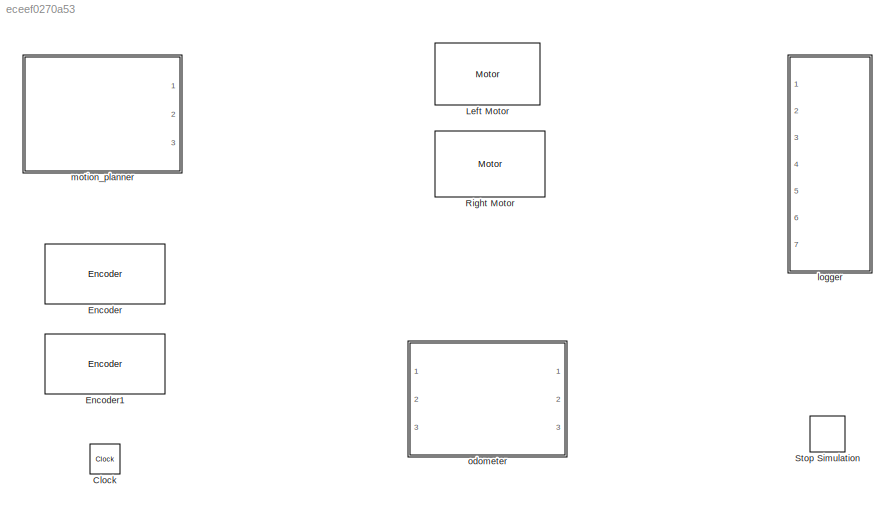
MODEL slx_eceef0270a53
KIND model
CONFIG AbsTol = auto
CONFIG FixedStep = 0.032
CONFIG MaxStep = auto
CONFIG MinStep = auto
CONFIG RelTol = 1e-3
CONFIG SampleTimeConstraint = Unconstrained
CONFIG Solver = FixedStepAuto
CONFIG SolverMode = Auto
CONFIG SolverName = FixedStepAuto
CONFIG StartTime = 0.0
CONFIG StopTime = 60
BLOCK [Clock] Clock
  Decimation = 1
BLOCK [Reference] Encoder  REF=legoev3lib/Encoder
  Ports = [0, 1]
  SourceBlock = legoev3lib/Encoder
  SourceType = LEGO MINDSTORMS EV3 Encoder
BLOCK [Reference] Encoder1  REF=legoev3lib/Encoder
  Ports = [0, 1]
  SourceBlock = legoev3lib/Encoder
  SourceType = LEGO MINDSTORMS EV3 Encoder
BLOCK [Reference] Left Motor  REF=legoev3lib/Motor
  Ports = [1]
  SourceBlock = legoev3lib/Motor
  SourceType = LEGO MINDSTORMS EV3 Motor
BLOCK [Reference] Right Motor  REF=legoev3lib/Motor
  Ports = [1]
  SourceBlock = legoev3lib/Motor
  SourceType = LEGO MINDSTORMS EV3 Motor
BLOCK [Stop] Stop Simulation
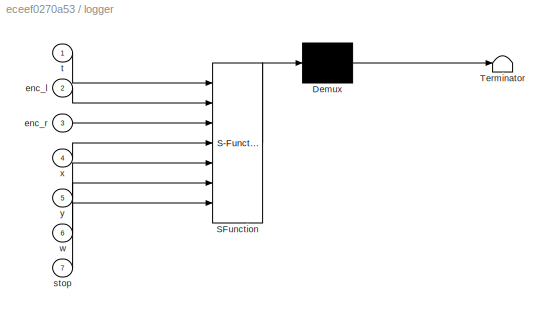
BLOCK [SubSystem] logger
  ErrorFcn = Stateflow.Translate.translate
  PermitHierarchicalResolution = ExplicitOnly
  Ports = [7]
  RequestExecContextInheritance = off
  SFBlockType = MATLAB Function
  TreatAsAtomicUnit = on
  Variant = off
BLOCK [Demux] logger/ Demux 
  Outputs = 1
  Ports = [1, 1]
BLOCK [S-Function] logger/ SFunction 
  EnableBusSupport = on
  FunctionName = sf_sfun
  PortCounts = [7 1]
  Ports = [7, 1]
  SFunctionDeploymentMode = off
  Tag = Stateflow S-Function practica5_ev3 3
BLOCK [Terminator] logger/ Terminator 
BLOCK [Inport] logger/enc_l
  IconDisplay = Port number
  Port = 2
BLOCK [Inport] logger/enc_r
  IconDisplay = Port number
  Port = 3
BLOCK [Inport] logger/stop
  IconDisplay = Port number
  Port = 7
BLOCK [Inport] logger/t
  IconDisplay = Port number
BLOCK [Inport] logger/w
  IconDisplay = Port number
  Port = 6
BLOCK [Inport] logger/x
  IconDisplay = Port number
  Port = 4
BLOCK [Inport] logger/y
  IconDisplay = Port number
  Port = 5
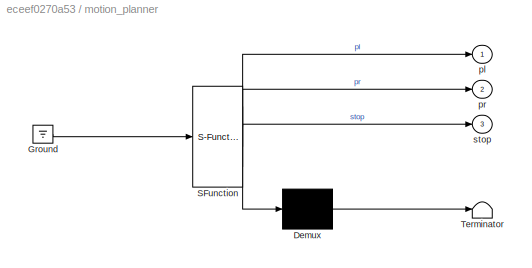
BLOCK [SubSystem] motion_planner
  ErrorFcn = Stateflow.Translate.translate
  PermitHierarchicalResolution = ExplicitOnly
  Ports = [0, 3]
  RequestExecContextInheritance = off
  SFBlockType = MATLAB Function
  TreatAsAtomicUnit = on
  Variant = off
BLOCK [Demux] motion_planner/ Demux 
  Outputs = 1
  Ports = [1, 1]
BLOCK [Ground] motion_planner/ Ground 
BLOCK [S-Function] motion_planner/ SFunction 
  EnableBusSupport = on
  FunctionName = sf_sfun
  PortCounts = [1 4]
  Ports = [1, 4]
  SFunctionDeploymentMode = off
  Tag = Stateflow S-Function practica5_ev3 1
BLOCK [Terminator] motion_planner/ Terminator 
BLOCK [Outport] motion_planner/pl
  IconDisplay = Port number
BLOCK [Outport] motion_planner/pr
  IconDisplay = Port number
  Port = 2
BLOCK [Outport] motion_planner/stop
  IconDisplay = Port number
  Port = 3
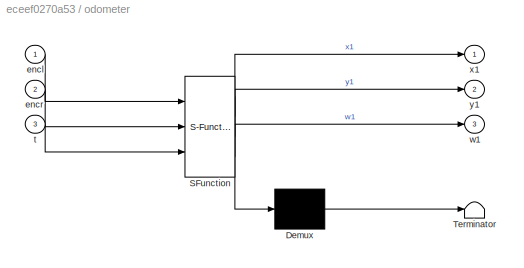
BLOCK [SubSystem] odometer
  ErrorFcn = Stateflow.Translate.translate
  PermitHierarchicalResolution = ExplicitOnly
  Ports = [3, 3]
  RequestExecContextInheritance = off
  SFBlockType = MATLAB Function
  TreatAsAtomicUnit = on
  Variant = off
BLOCK [Demux] odometer/ Demux 
  Outputs = 1
  Ports = [1, 1]
BLOCK [S-Function] odometer/ SFunction 
  EnableBusSupport = on
  FunctionName = sf_sfun
  PortCounts = [3 4]
  Ports = [3, 4]
  SFunctionDeploymentMode = off
  Tag = Stateflow S-Function practica5_ev3 2
BLOCK [Terminator] odometer/ Terminator 
BLOCK [Inport] odometer/encl
  IconDisplay = Port number
BLOCK [Inport] odometer/encr
  IconDisplay = Port number
  Port = 2
BLOCK [Inport] odometer/t
  IconDisplay = Port number
  Port = 3
BLOCK [Outport] odometer/w1
  IconDisplay = Port number
  Port = 3
BLOCK [Outport] odometer/x1
  IconDisplay = Port number
BLOCK [Outport] odometer/y1
  IconDisplay = Port number
  Port = 2
CHART motion_planner states=1 transitions=1
  STATE_LABEL 'eML_blk_kernel()'
  STATE_LABEL 'SCRIPT:\nfunction [pl,pr,stop]  = motion_planner()\n\n    stop = 0;\n    \nend\n'
CHART odometer states=1 transitions=1
  STATE_LABEL 'eML_blk_kernel()'
  STATE_LABEL 'SCRIPT:\nfunction [x1,y1,w1]  = odometer( encl, encr, t )\n\n    time  = double(t);\n    enc_l = double(encl);\n    enc_r = double(encr);\n\n    % define constants\n    persistent D R;\n    if( isempty(D) )\n        D = 0.117;\n        R = 0.027;\n    end\n\n    % define previous state \n    persistent x0 y0 w0 t0 prev_enc_l prev_enc_r;\n    if( isempty(x0) )\n        x0 = 0;\n        y0 = 0;\n        w0 = 0;\n      ...<+81ch>'
CHART logger states=1 transitions=1
  STATE_LABEL 'eML_blk_kernel()'
  STATE_LABEL "SCRIPT:\nfunction logger(t,enc_l,enc_r,x,y,w,stop)\n    %#codegen\n    persistent myfile;\n    if (isempty(myfile))\n        myfile = fopen('<userpath>/lms2012/prjs/mw/mylog.rdf','w');\n    end\n    if (myfile>=0)\n         if (stop==1)\n             fclose(myfile);\n             myfile = -1;\n         else\n            fprintf(myfile,'%f\\t%f\\t%f\\t%f\\t%f\\t%f\\t\\n',t,double(enc_l),double(enc_r),x,y,w);         ...<+42ch>"
